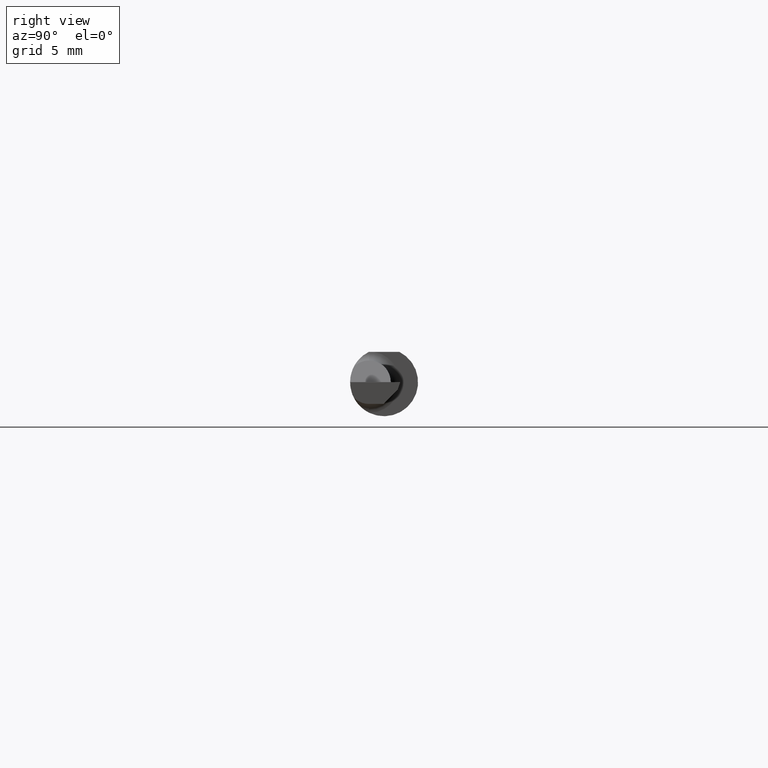
[diagram: clean part render]
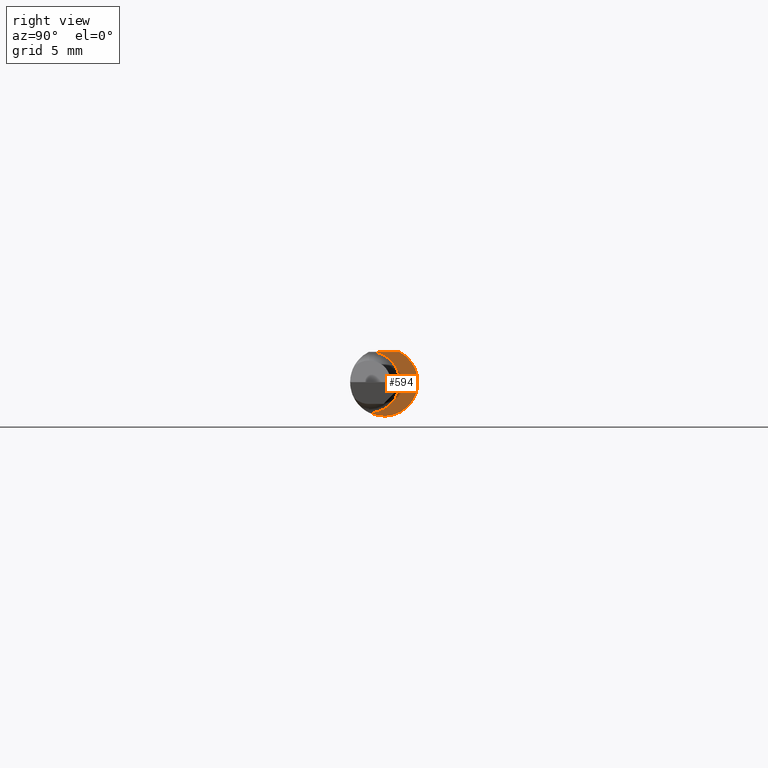
[diagram: same view with one face highlighted and labeled with its STEP entity id]
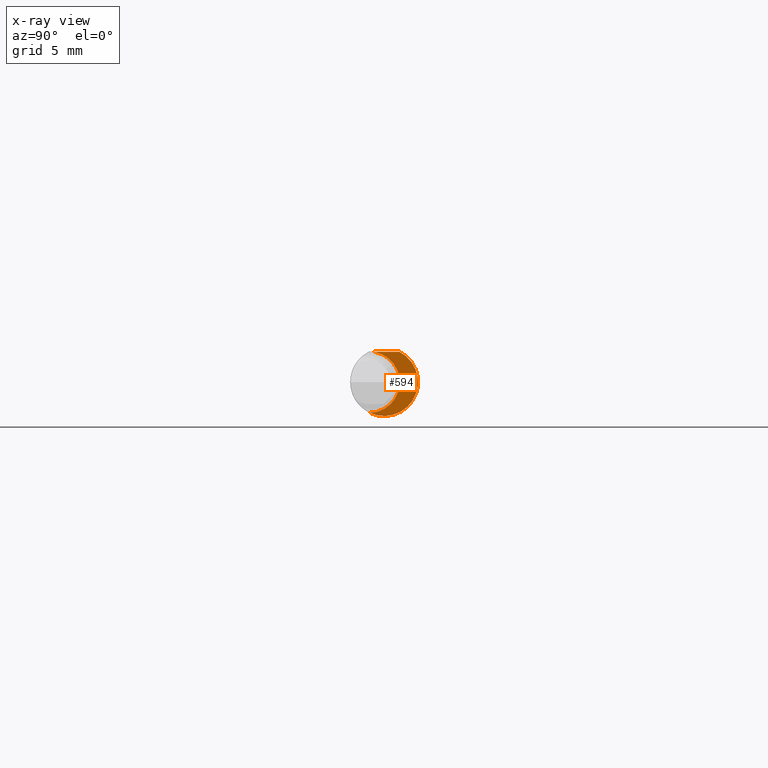
[diagram: x-ray of the same camera — body ghosted, the highlighted face saturated]
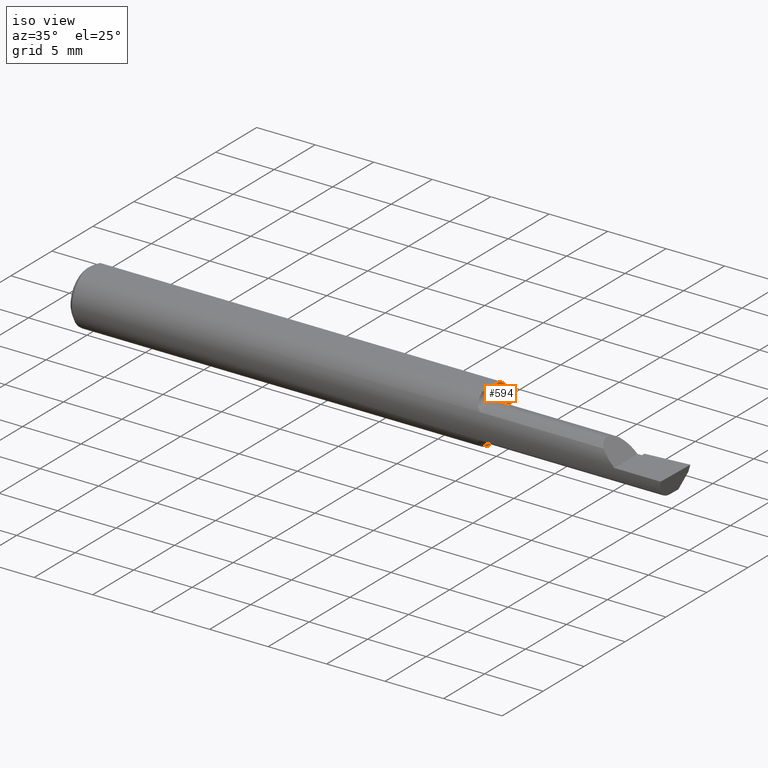
[diagram: same view with one face highlighted and labeled with its STEP entity id]
A machine part, right view. The second image highlights one B-rep face of the part: STEP entity #594.
The next image is the same camera in x-ray: the body ghosted, the highlighted face saturated — about 0% of this face is hidden behind the body in this view.
A second angle (iso view) of the same face is appended — the face is thin or edge-on in the first view.
In plain terms, the highlighted planar face has unit normal (1, 0, 0).
Its self-contained STEP definition (entity closure, byte-faithful):
#69 = LINE ( 'NONE', #613, #172 ) ;
#86 = AXIS2_PLACEMENT_3D ( 'NONE', #386, #629, #223 ) ;
#88 = EDGE_LOOP ( 'NONE', ( #651, #291, #350 ) ) ;
#163 = DIRECTION ( 'NONE',  ( 0.0000000000000000000, -1.000000000000000000, 1.189000693621284344E-16 ) ) ;
#172 = VECTOR ( 'NONE', #163, 39.37007874015748143 ) ;
#190 = VERTEX_POINT ( 'NONE', #429 ) ;
#203 = CARTESIAN_POINT ( 'NONE',  ( 1.359999999999999654, -0.02669966216601827105, 0.08360000000000000764 ) ) ;
#223 = DIRECTION ( 'NONE',  ( 0.0000000000000000000, 0.0000000000000000000, 1.000000000000000000 ) ) ;
#253 = AXIS2_PLACEMENT_3D ( 'NONE', #641, #342, #590 ) ;
#291 = ORIENTED_EDGE ( 'NONE', *, *, #481, .T. ) ;
#318 = VERTEX_POINT ( 'NONE', #203 ) ;
#342 = DIRECTION ( 'NONE',  ( 1.000000000000000000, 0.0000000000000000000, 0.0000000000000000000 ) ) ;
#350 = ORIENTED_EDGE ( 'NONE', *, *, #516, .T. ) ;
#358 = CARTESIAN_POINT ( 'NONE',  ( 1.359999999999999654, 0.04209513035969836975, 0.08360000000000000764 ) ) ;
#380 = VERTEX_POINT ( 'NONE', #358 ) ;
#386 = CARTESIAN_POINT ( 'NONE',  ( 1.359999999999999654, -0.04150000000000000216, 0.0000000000000000000 ) ) ;
#407 = DIRECTION ( 'NONE',  ( 1.000000000000000000, 0.0000000000000000000, 0.0000000000000000000 ) ) ;
#411 = DIRECTION ( 'NONE',  ( 0.0000000000000000000, 0.0000000000000000000, -1.000000000000000000 ) ) ;
#416 = AXIS2_PLACEMENT_3D ( 'NONE', #584, #407, #411 ) ;
#429 = CARTESIAN_POINT ( 'NONE',  ( 1.359999999999999654, -0.03946024096385552377, -0.08487549341873930342 ) ) ;
#462 = FACE_OUTER_BOUND ( 'NONE', #88, .T. ) ;
#481 = EDGE_CURVE ( 'NONE', #380, #318, #69, .T. ) ;
#495 = CIRCLE ( 'NONE', #416, 0.09360000000000001652 ) ;
#503 = EDGE_CURVE ( 'NONE', #190, #380, #495, .T. ) ;
#516 = EDGE_CURVE ( 'NONE', #318, #190, #552, .T. ) ;
#552 = CIRCLE ( 'NONE', #86, 0.08489999999999996161 ) ;
#584 = CARTESIAN_POINT ( 'NONE',  ( 1.359999999999999654, 0.0000000000000000000, 0.0000000000000000000 ) ) ;
#590 = DIRECTION ( 'NONE',  ( 0.0000000000000000000, 0.0000000000000000000, -1.000000000000000000 ) ) ;
#594 = ADVANCED_FACE ( 'NONE', ( #462 ), #645, .T. ) ;
#613 = CARTESIAN_POINT ( 'NONE',  ( 1.359999999999999654, 0.1436000000000000332, 0.08359999999999999376 ) ) ;
#629 = DIRECTION ( 'NONE',  ( -1.000000000000000000, -0.0000000000000000000, -0.0000000000000000000 ) ) ;
#641 = CARTESIAN_POINT ( 'NONE',  ( 1.359999999999999654, 0.04339999999999993863, 0.0000000000000000000 ) ) ;
#645 = PLANE ( 'NONE',  #253 ) ;
#651 = ORIENTED_EDGE ( 'NONE', *, *, #503, .T. ) ;